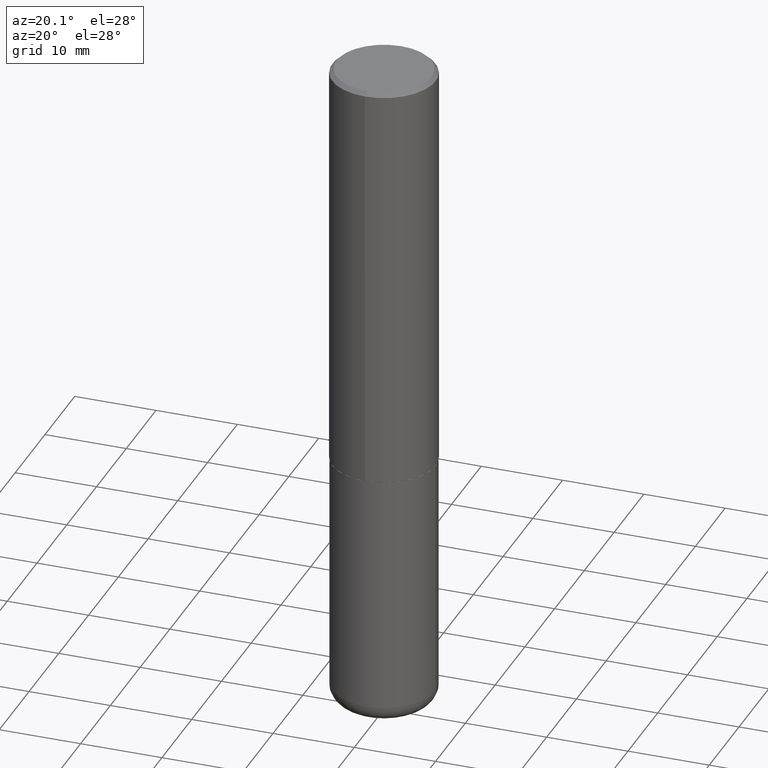
[diagram: clean part render]
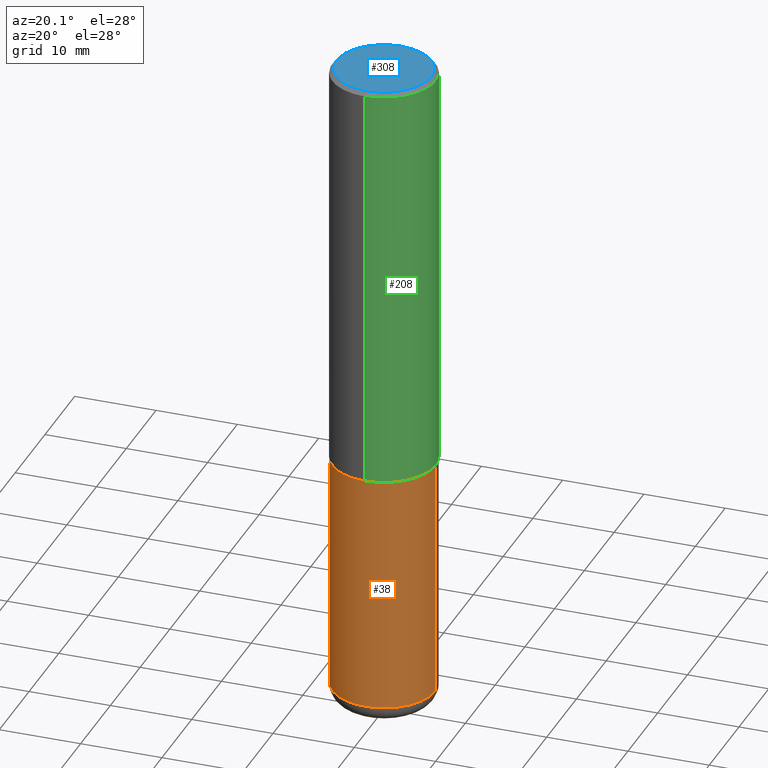
[diagram: same view with three faces highlighted in distinct colors, each labeled with its STEP entity id]
A machine part, auxiliary view with three faces highlighted in distinct colors.
Their STEP definitions:

[orange] entity #38 — the highlighted cylindrical surface (partial cylindrical patch) has radius 6.35 mm, axis along (-0, 0, 1).
#1 = CARTESIAN_POINT ( 'NONE',  ( 0.000000000000000000, 0.000000000000000000, 0.000000000000000000 ) ) ;
#14 = EDGE_LOOP ( 'NONE', ( #312, #29, #80, #74 ) ) ;
#28 = LINE ( 'NONE', #73, #317 ) ;
#29 = ORIENTED_EDGE ( 'NONE', *, *, #287, .T. ) ;
#38 = ADVANCED_FACE ( 'NONE', ( #161 ), #165, .T. ) ;
#45 = VERTEX_POINT ( 'NONE', #190 ) ;
#53 = VERTEX_POINT ( 'NONE', #350 ) ;
#56 = AXIS2_PLACEMENT_3D ( 'NONE', #1, #69, #188 ) ;
#69 = DIRECTION ( 'NONE',  ( -2.445468806185136597E-29, 3.491481338843145583E-15, 1.000000000000000000 ) ) ;
#71 = AXIS2_PLACEMENT_3D ( 'NONE', #200, #169, #306 ) ;
#73 = CARTESIAN_POINT ( 'NONE',  ( -0.2500000000000000000, 1.776356839400250465E-15, -1.229733772563726445E-29 ) ) ;
#74 = ORIENTED_EDGE ( 'NONE', *, *, #232, .F. ) ;
#80 = ORIENTED_EDGE ( 'NONE', *, *, #259, .T. ) ;
#82 = VECTOR ( 'NONE', #271, 39.37007874015748143 ) ;
#101 = LINE ( 'NONE', #300, #82 ) ;
#104 = VERTEX_POINT ( 'NONE', #356 ) ;
#116 = CIRCLE ( 'NONE', #393, 0.2500000000000000555 ) ;
#128 = CARTESIAN_POINT ( 'NONE',  ( 0.2499999999999998612, -1.277882170016590626E-14, -3.160000000000000142 ) ) ;
#136 = VERTEX_POINT ( 'NONE', #128 ) ;
#161 = FACE_OUTER_BOUND ( 'NONE', #14, .T. ) ;
#165 = CYLINDRICAL_SURFACE ( 'NONE', #56, 0.2500000000000000000 ) ;
#169 = DIRECTION ( 'NONE',  ( -2.445468806185136597E-29, 3.491481338843145583E-15, 1.000000000000000000 ) ) ;
#171 = DIRECTION ( 'NONE',  ( -2.445468806185136877E-29, 3.491481338843145188E-15, 1.000000000000000000 ) ) ;
#179 = EDGE_CURVE ( 'NONE', #45, #104, #28, .T. ) ;
#186 = CARTESIAN_POINT ( 'NONE',  ( 7.727681427545032274E-29, -1.103308103074433958E-14, -3.160000000000000142 ) ) ;
#188 = DIRECTION ( 'NONE',  ( 1.000000000000000000, -6.982962677686266711E-15, 4.876176775795935793E-29 ) ) ;
#190 = CARTESIAN_POINT ( 'NONE',  ( -0.2499999999999998612, -9.256724191344090697E-15, -3.160000000000000142 ) ) ;
#200 = CARTESIAN_POINT ( 'NONE',  ( 4.890937612370273194E-29, -6.982962677686291165E-15, -2.000000000000000000 ) ) ;
#232 = EDGE_CURVE ( 'NONE', #104, #53, #268, .T. ) ;
#252 = DIRECTION ( 'NONE',  ( -2.445468806185136597E-29, 3.491481338843145583E-15, 1.000000000000000000 ) ) ;
#259 = EDGE_CURVE ( 'NONE', #136, #53, #101, .T. ) ;
#268 = CIRCLE ( 'NONE', #71, 0.2500000000000000000 ) ;
#271 = DIRECTION ( 'NONE',  ( -2.445468806185136877E-29, 3.491481338843145188E-15, 1.000000000000000000 ) ) ;
#287 = EDGE_CURVE ( 'NONE', #45, #136, #116, .T. ) ;
#300 = CARTESIAN_POINT ( 'NONE',  ( 0.2500000000000000000, -1.745740669421566678E-15, 1.219044193948983948E-29 ) ) ;
#306 = DIRECTION ( 'NONE',  ( 1.000000000000000000, -6.982962677686266711E-15, 0.000000000000000000 ) ) ;
#312 = ORIENTED_EDGE ( 'NONE', *, *, #179, .F. ) ;
#317 = VECTOR ( 'NONE', #171, 39.37007874015748143 ) ;
#350 = CARTESIAN_POINT ( 'NONE',  ( 0.2500000000000000000, -8.728703347107857054E-15, -2.000000000000000000 ) ) ;
#356 = CARTESIAN_POINT ( 'NONE',  ( -0.2500000000000000000, -7.231665014815064515E-15, -2.000000000000000000 ) ) ;
#367 = DIRECTION ( 'NONE',  ( 1.000000000000000000, -6.982962677686269077E-15, 0.000000000000000000 ) ) ;
#393 = AXIS2_PLACEMENT_3D ( 'NONE', #186, #252, #367 ) ;

[blue] entity #308 — the highlighted planar face has unit normal (0, -0, -1).
#19 = CARTESIAN_POINT ( 'NONE',  ( 1.675911042644704366E-15, 0.2300000000000000377, -7.987721954438231638E-16 ) ) ;
#20 = FACE_OUTER_BOUND ( 'NONE', #335, .T. ) ;
#34 = AXIS2_PLACEMENT_3D ( 'NONE', #405, #281, #81 ) ;
#40 = DIRECTION ( 'NONE',  ( -2.443621766204130368E-29, 3.494126405222933371E-15, 1.000000000000000000 ) ) ;
#81 = DIRECTION ( 'NONE',  ( 6.982962677686265922E-15, 1.000000000000000000, -3.494126405222933371E-15 ) ) ;
#83 = ORIENTED_EDGE ( 'NONE', *, *, #330, .T. ) ;
#112 = CARTESIAN_POINT ( 'NONE',  ( -1.191724463922560587E-46, 1.704042734735616643E-32, 4.876877757451635874E-18 ) ) ;
#131 = AXIS2_PLACEMENT_3D ( 'NONE', #112, #341, #377 ) ;
#162 = AXIS2_PLACEMENT_3D ( 'NONE', #329, #40, #331 ) ;
#202 = VERTEX_POINT ( 'NONE', #236 ) ;
#235 = CIRCLE ( 'NONE', #162, 0.2300000000000000377 ) ;
#236 = CARTESIAN_POINT ( 'NONE',  ( -1.646519519465167559E-15, -0.2300000000000000377, 8.085259509587265064E-16 ) ) ;
#242 = EDGE_CURVE ( 'NONE', #394, #202, #235, .T. ) ;
#281 = DIRECTION ( 'NONE',  ( 2.443621766204130088E-29, -3.494126405222933371E-15, -1.000000000000000000 ) ) ;
#308 = ADVANCED_FACE ( 'NONE', ( #20 ), #369, .F. ) ;
#329 = CARTESIAN_POINT ( 'NONE',  ( -1.191724463922560587E-46, 1.704042734735616643E-32, 4.876877757451635874E-18 ) ) ;
#330 = EDGE_CURVE ( 'NONE', #202, #394, #402, .T. ) ;
#331 = DIRECTION ( 'NONE',  ( -6.982962677686265922E-15, -1.000000000000000000, 3.494126405222933371E-15 ) ) ;
#333 = ORIENTED_EDGE ( 'NONE', *, *, #242, .T. ) ;
#335 = EDGE_LOOP ( 'NONE', ( #333, #83 ) ) ;
#341 = DIRECTION ( 'NONE',  ( -2.443621766204130368E-29, 3.494126405222933371E-15, 1.000000000000000000 ) ) ;
#369 = PLANE ( 'NONE',  #34 ) ;
#377 = DIRECTION ( 'NONE',  ( -6.982962677686265922E-15, -1.000000000000000000, 3.494126405222933371E-15 ) ) ;
#394 = VERTEX_POINT ( 'NONE', #19 ) ;
#402 = CIRCLE ( 'NONE', #131, 0.2300000000000000377 ) ;
#405 = CARTESIAN_POINT ( 'NONE',  ( 1.606081415867841462E-15, 0.2300000000000000377, -8.012106343225490734E-16 ) ) ;

[green] entity #208 — the highlighted cylindrical surface (partial cylindrical patch) has radius 6.35 mm, axis along (-0, 0, 1).
#4 = DIRECTION ( 'NONE',  ( -6.982962677686266711E-15, -1.000000000000000000, 3.494126405222933371E-15 ) ) ;
#9 = CARTESIAN_POINT ( 'NONE',  ( 1.776356839400276103E-15, 0.2499999999999932276, -1.999000000000000776 ) ) ;
#13 = VERTEX_POINT ( 'NONE', #133 ) ;
#32 = DIRECTION ( 'NONE',  ( -6.982962677686265133E-15, -1.000000000000000000, 3.500180241882336472E-15 ) ) ;
#39 = CARTESIAN_POINT ( 'NONE',  ( -1.745740669421519346E-15, -0.2500000000000072164, -1.998999999999999000 ) ) ;
#47 = ORIENTED_EDGE ( 'NONE', *, *, #417, .T. ) ;
#55 = LINE ( 'NONE', #347, #227 ) ;
#62 = CARTESIAN_POINT ( 'NONE',  ( 4.884799910642056120E-29, -6.984758684040643933E-15, -1.998999999999999888 ) ) ;
#64 = CIRCLE ( 'NONE', #140, 0.2500000000000000555 ) ;
#79 = EDGE_CURVE ( 'NONE', #247, #13, #196, .T. ) ;
#98 = DIRECTION ( 'NONE',  ( -2.443621766204130368E-29, 3.494126405222933371E-15, 1.000000000000000000 ) ) ;
#108 = AXIS2_PLACEMENT_3D ( 'NONE', #62, #254, #187 ) ;
#113 = ORIENTED_EDGE ( 'NONE', *, *, #79, .T. ) ;
#122 = EDGE_CURVE ( 'NONE', #339, #13, #64, .T. ) ;
#133 = CARTESIAN_POINT ( 'NONE',  ( 1.745740669421567269E-15, 0.2499999999999999722, -0.02000000000000092329 ) ) ;
#140 = AXIS2_PLACEMENT_3D ( 'NONE', #324, #98, #32 ) ;
#145 = CARTESIAN_POINT ( 'NONE',  ( -1.715124499442882496E-15, -0.2500000000000001110, -0.01999999999999917122 ) ) ;
#166 = DIRECTION ( 'NONE',  ( -2.443621766204130368E-29, 3.494126405222933371E-15, 1.000000000000000000 ) ) ;
#168 = VECTOR ( 'NONE', #411, 39.37007874015748143 ) ;
#175 = AXIS2_PLACEMENT_3D ( 'NONE', #298, #166, #4 ) ;
#178 = DIRECTION ( 'NONE',  ( -2.443621766204130648E-29, 3.494126405222933371E-15, 1.000000000000000000 ) ) ;
#187 = DIRECTION ( 'NONE',  ( -6.982962677686266711E-15, -1.000000000000000000, 3.278217592397113101E-15 ) ) ;
#196 = LINE ( 'NONE', #297, #168 ) ;
#201 = FACE_OUTER_BOUND ( 'NONE', #309, .T. ) ;
#207 = VERTEX_POINT ( 'NONE', #39 ) ;
#208 = ADVANCED_FACE ( 'NONE', ( #201 ), #361, .T. ) ;
#227 = VECTOR ( 'NONE', #178, 39.37007874015748143 ) ;
#247 = VERTEX_POINT ( 'NONE', #9 ) ;
#254 = DIRECTION ( 'NONE',  ( -2.443621766204130368E-29, 3.494126405222933371E-15, 1.000000000000000000 ) ) ;
#296 = CIRCLE ( 'NONE', #108, 0.2500000000000002220 ) ;
#297 = CARTESIAN_POINT ( 'NONE',  ( 1.776356839400251254E-15, 0.2500000000000001110, -8.735316013057337372E-16 ) ) ;
#298 = CARTESIAN_POINT ( 'NONE',  ( 0.000000000000000000, 0.000000000000000000, 0.000000000000000000 ) ) ;
#309 = EDGE_LOOP ( 'NONE', ( #47, #113, #400, #414 ) ) ;
#324 = CARTESIAN_POINT ( 'NONE',  ( 4.887243532408272857E-31, -6.988252810445882815E-17, -0.02000000000000004552 ) ) ;
#339 = VERTEX_POINT ( 'NONE', #145 ) ;
#345 = EDGE_CURVE ( 'NONE', #207, #339, #55, .T. ) ;
#347 = CARTESIAN_POINT ( 'NONE',  ( -1.745740669421567467E-15, -0.2500000000000001110, 8.735316013057337372E-16 ) ) ;
#361 = CYLINDRICAL_SURFACE ( 'NONE', #175, 0.2500000000000001110 ) ;
#400 = ORIENTED_EDGE ( 'NONE', *, *, #122, .F. ) ;
#411 = DIRECTION ( 'NONE',  ( -2.443621766204130648E-29, 3.494126405222933371E-15, 1.000000000000000000 ) ) ;
#414 = ORIENTED_EDGE ( 'NONE', *, *, #345, .F. ) ;
#417 = EDGE_CURVE ( 'NONE', #207, #247, #296, .T. ) ;